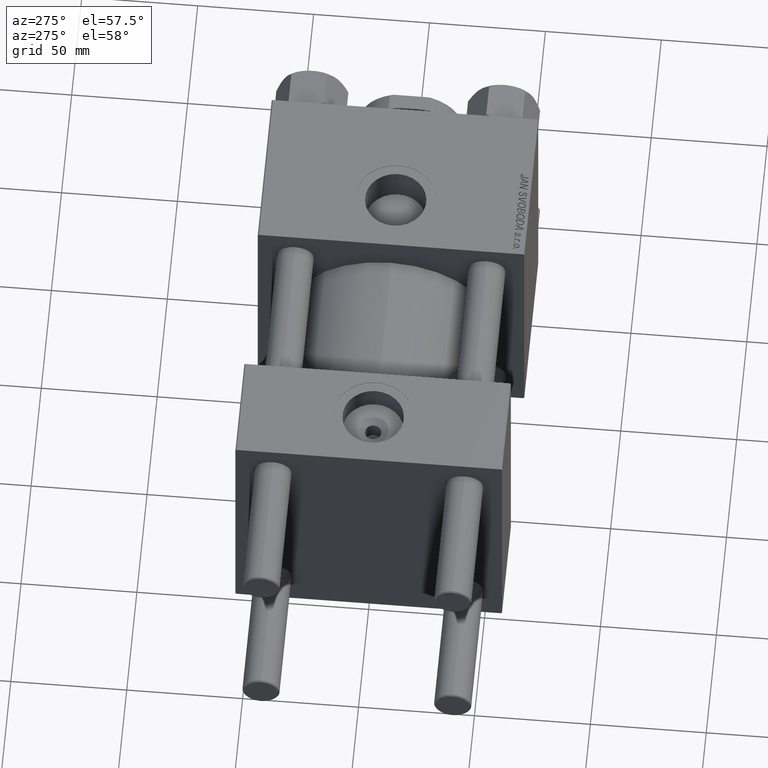
[diagram: clean part render]
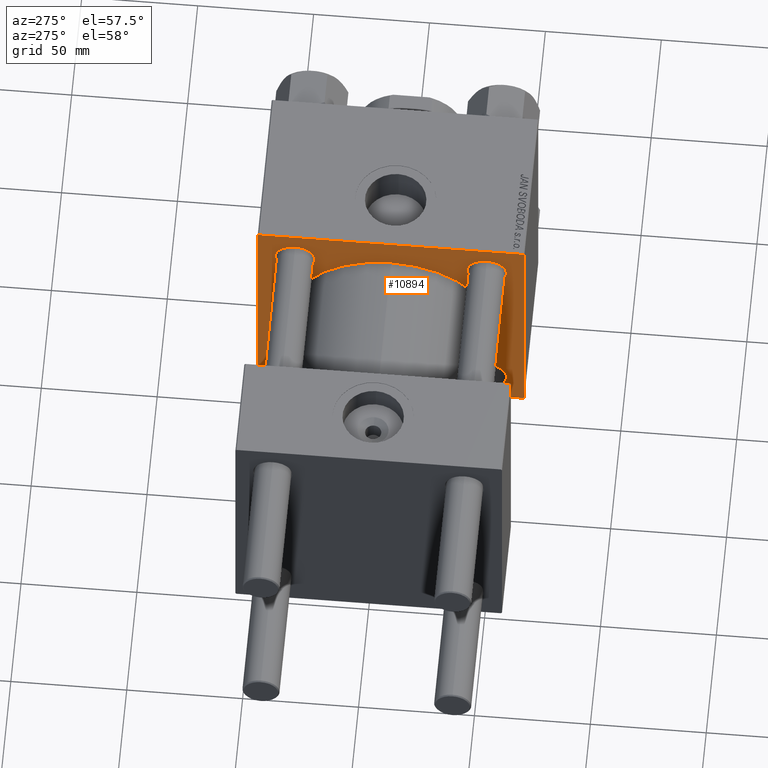
[diagram: same view with one face highlighted and labeled with its STEP entity id]
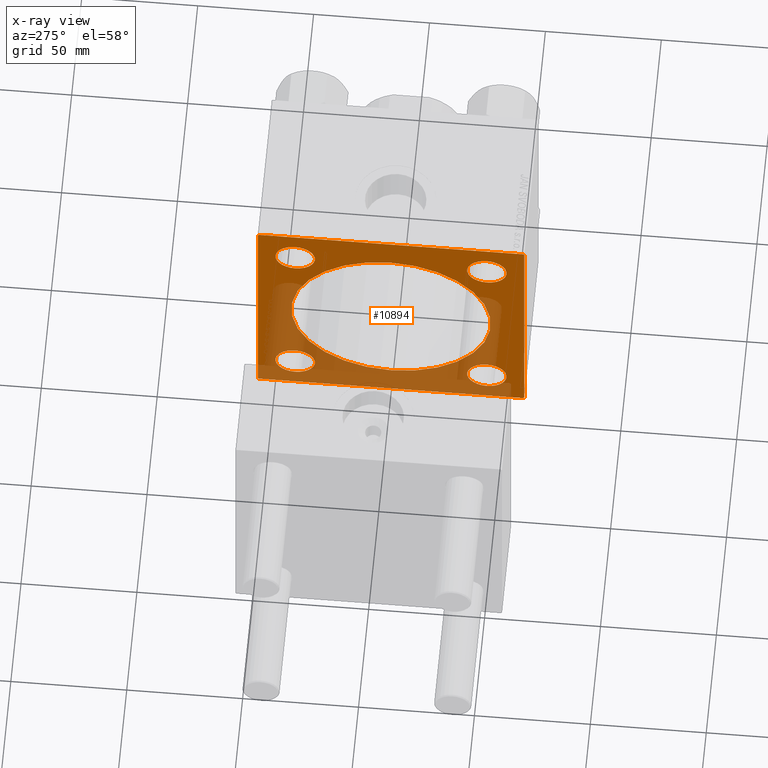
[diagram: x-ray of the same camera — body ghosted, the highlighted face saturated]
A machine part, auxiliary view. The second image highlights one B-rep face of the part: STEP entity #10894.
The next image is the same camera in x-ray: the body ghosted, the highlighted face saturated — about 43% of this face is hidden behind the body in this view.
In plain terms, the highlighted planar face has unit normal (-1, 0, 0).
Its self-contained STEP definition (entity closure, byte-faithful):
#220 = EDGE_LOOP ( 'NONE', ( #11552, #32388 ) ) ;
#613 = ORIENTED_EDGE ( 'NONE', *, *, #8282, .T. ) ;
#730 = CIRCLE ( 'NONE', #29184, 8.500000000000007105 ) ;
#1202 = VERTEX_POINT ( 'NONE', #38507 ) ;
#1532 = DIRECTION ( 'NONE',  ( 0.000000000000000000, 0.000000000000000000, 1.000000000000000000 ) ) ;
#2210 = DIRECTION ( 'NONE',  ( 0.000000000000000000, 0.000000000000000000, -1.000000000000000000 ) ) ;
#2318 = ORIENTED_EDGE ( 'NONE', *, *, #16825, .T. ) ;
#2394 = ORIENTED_EDGE ( 'NONE', *, *, #43555, .T. ) ;
#2690 = ORIENTED_EDGE ( 'NONE', *, *, #18058, .T. ) ;
#3242 = ORIENTED_EDGE ( 'NONE', *, *, #6230, .T. ) ;
#3484 = VERTEX_POINT ( 'NONE', #39026 ) ;
#3653 = CARTESIAN_POINT ( 'NONE',  ( 110.0000000000000000, 57.24999999999840838, 57.25000000000159162 ) ) ;
#4194 = ORIENTED_EDGE ( 'NONE', *, *, #22688, .T. ) ;
#4236 = CARTESIAN_POINT ( 'NONE',  ( 110.0000000000000000, -41.34999999999998721, -41.35000000000000853 ) ) ;
#4841 = DIRECTION ( 'NONE',  ( 1.000000000000000000, -0.000000000000000000, 0.000000000000000000 ) ) ;
#6230 = EDGE_CURVE ( 'NONE', #21878, #1202, #10455, .T. ) ;
#6247 = LINE ( 'NONE', #25345, #32640 ) ;
#6410 = DIRECTION ( 'NONE',  ( 1.000000000000000000, -0.000000000000000000, 0.000000000000000000 ) ) ;
#6421 = DIRECTION ( 'NONE',  ( 1.000000000000000000, 0.000000000000000000, 0.000000000000000000 ) ) ;
#6755 = CARTESIAN_POINT ( 'NONE',  ( 110.0000000000000000, 41.34999999999999432, 41.35000000000000142 ) ) ;
#7007 = FACE_BOUND ( 'NONE', #220, .T. ) ;
#7060 = VERTEX_POINT ( 'NONE', #18885 ) ;
#7730 = DIRECTION ( 'NONE',  ( 0.000000000000000000, 0.000000000000000000, 1.000000000000000000 ) ) ;
#7766 = ORIENTED_EDGE ( 'NONE', *, *, #22956, .T. ) ;
#8282 = EDGE_CURVE ( 'NONE', #12847, #33347, #31095, .T. ) ;
#8564 = CARTESIAN_POINT ( 'NONE',  ( 110.0000000000000000, 5.265981236333618470E-15, -43.00000000000000000 ) ) ;
#8634 = LINE ( 'NONE', #23163, #32303 ) ;
#9175 = CARTESIAN_POINT ( 'NONE',  ( 110.0000000000000000, 41.34999999999999432, -41.35000000000000142 ) ) ;
#9295 = VERTEX_POINT ( 'NONE', #47902 ) ;
#9562 = LINE ( 'NONE', #28179, #38556 ) ;
#9889 = AXIS2_PLACEMENT_3D ( 'NONE', #49800, #26114, #30446 ) ;
#10455 = LINE ( 'NONE', #46540, #17093 ) ;
#10525 = DIRECTION ( 'NONE',  ( 0.000000000000000000, 0.7071067811865672237, -0.7071067811865279218 ) ) ;
#10690 = AXIS2_PLACEMENT_3D ( 'NONE', #6755, #37824, #27373 ) ;
#10894 = ADVANCED_FACE ( 'NONE', ( #42146, #49294, #41902, #7007, #14420, #45466 ), #15171, .T. ) ;
#10922 = EDGE_CURVE ( 'NONE', #42789, #9295, #36732, .T. ) ;
#10971 = EDGE_LOOP ( 'NONE', ( #613, #23017, #42031, #3242, #47701, #7766, #2394, #49046 ) ) ;
#11051 = EDGE_CURVE ( 'NONE', #35577, #3484, #47315, .T. ) ;
#11067 = CARTESIAN_POINT ( 'NONE',  ( 110.0000000000000000, 56.99999999999997158, 57.50000000000000711 ) ) ;
#11416 = CARTESIAN_POINT ( 'NONE',  ( 110.0000000000000000, -41.34999999999998721, -49.85000000000002274 ) ) ;
#11552 = ORIENTED_EDGE ( 'NONE', *, *, #26983, .T. ) ;
#11854 = CARTESIAN_POINT ( 'NONE',  ( 110.0000000000000000, 0.000000000000000000, 0.000000000000000000 ) ) ;
#12847 = VERTEX_POINT ( 'NONE', #18142 ) ;
#13399 = DIRECTION ( 'NONE',  ( -0.000000000000000000, -0.7071067811865279218, -0.7071067811865672237 ) ) ;
#13405 = AXIS2_PLACEMENT_3D ( 'NONE', #11854, #46235, #50313 ) ;
#14420 = FACE_BOUND ( 'NONE', #34066, .T. ) ;
#14506 = DIRECTION ( 'NONE',  ( 0.000000000000000000, -0.7071067811865721087, 0.7071067811865230368 ) ) ;
#14570 = DIRECTION ( 'NONE',  ( 0.000000000000000000, 0.000000000000000000, 1.000000000000000000 ) ) ;
#15171 = PLANE ( 'NONE',  #9889 ) ;
#15582 = DIRECTION ( 'NONE',  ( 0.000000000000000000, -1.000000000000000000, -1.206764157201257291E-16 ) ) ;
#16804 = EDGE_LOOP ( 'NONE', ( #25559, #2318 ) ) ;
#16825 = EDGE_CURVE ( 'NONE', #31172, #20084, #19737, .T. ) ;
#16838 = DIRECTION ( 'NONE',  ( 1.000000000000000000, -0.000000000000000000, 0.000000000000000000 ) ) ;
#17093 = VECTOR ( 'NONE', #25745, 1000.000000000000000 ) ;
#17223 = CARTESIAN_POINT ( 'NONE',  ( 110.0000000000000000, 41.34999999999999432, -32.84999999999999432 ) ) ;
#17259 = DIRECTION ( 'NONE',  ( 1.000000000000000000, -0.000000000000000000, 0.000000000000000000 ) ) ;
#17722 = EDGE_CURVE ( 'NONE', #9295, #42789, #40099, .T. ) ;
#18058 = EDGE_CURVE ( 'NONE', #3484, #35577, #41708, .T. ) ;
#18142 = CARTESIAN_POINT ( 'NONE',  ( 110.0000000000000000, 57.00000000000000000, -57.49999999999996447 ) ) ;
#18474 = VECTOR ( 'NONE', #30616, 1000.000000000000000 ) ;
#18885 = CARTESIAN_POINT ( 'NONE',  ( 110.0000000000000000, -57.49999999999999289, -56.99999999999997868 ) ) ;
#18923 = VERTEX_POINT ( 'NONE', #49897 ) ;
#19117 = VECTOR ( 'NONE', #10525, 1000.000000000000000 ) ;
#19178 = CARTESIAN_POINT ( 'NONE',  ( 110.0000000000000000, -41.34999999999998721, -32.85000000000000142 ) ) ;
#19196 = AXIS2_PLACEMENT_3D ( 'NONE', #46132, #6410, #14570 ) ;
#19737 = CIRCLE ( 'NONE', #27067, 8.500000000000007105 ) ;
#20049 = DIRECTION ( 'NONE',  ( 0.000000000000000000, 0.000000000000000000, 1.000000000000000000 ) ) ;
#20084 = VERTEX_POINT ( 'NONE', #17223 ) ;
#20104 = EDGE_CURVE ( 'NONE', #18923, #12847, #9562, .T. ) ;
#21305 = LINE ( 'NONE', #36818, #25586 ) ;
#21878 = VERTEX_POINT ( 'NONE', #34070 ) ;
#22688 = EDGE_CURVE ( 'NONE', #49804, #26924, #33746, .T. ) ;
#22956 = EDGE_CURVE ( 'NONE', #30449, #39489, #26069, .T. ) ;
#23017 = ORIENTED_EDGE ( 'NONE', *, *, #49819, .T. ) ;
#23163 = CARTESIAN_POINT ( 'NONE',  ( 110.0000000000000000, -57.24999999999798916, -57.25000000000196820 ) ) ;
#23285 = CIRCLE ( 'NONE', #39517, 43.00000000000000000 ) ;
#24021 = ORIENTED_EDGE ( 'NONE', *, *, #26176, .T. ) ;
#24111 = CIRCLE ( 'NONE', #25740, 8.500000000000007105 ) ;
#25345 = CARTESIAN_POINT ( 'NONE',  ( 110.0000000000000000, -57.49999999999999289, 57.49999999999999289 ) ) ;
#25428 = EDGE_CURVE ( 'NONE', #20084, #31172, #28124, .T. ) ;
#25559 = ORIENTED_EDGE ( 'NONE', *, *, #25428, .T. ) ;
#25586 = VECTOR ( 'NONE', #2210, 1000.000000000000000 ) ;
#25740 = AXIS2_PLACEMENT_3D ( 'NONE', #4236, #35304, #20049 ) ;
#25745 = DIRECTION ( 'NONE',  ( -0.000000000000000000, 0.7071067811865328068, 0.7071067811865622277 ) ) ;
#25777 = CARTESIAN_POINT ( 'NONE',  ( 110.0000000000000000, 0.000000000000000000, 0.000000000000000000 ) ) ;
#25864 = ORIENTED_EDGE ( 'NONE', *, *, #17722, .T. ) ;
#26069 = LINE ( 'NONE', #3653, #19117 ) ;
#26114 = DIRECTION ( 'NONE',  ( -1.000000000000000000, 0.000000000000000000, -0.000000000000000000 ) ) ;
#26176 = EDGE_CURVE ( 'NONE', #26924, #49804, #23285, .T. ) ;
#26744 = CARTESIAN_POINT ( 'NONE',  ( 110.0000000000000000, 0.000000000000000000, 43.00000000000000000 ) ) ;
#26924 = VERTEX_POINT ( 'NONE', #8564 ) ;
#26983 = EDGE_CURVE ( 'NONE', #32801, #38388, #24111, .T. ) ;
#27067 = AXIS2_PLACEMENT_3D ( 'NONE', #9175, #16838, #40232 ) ;
#27091 = CARTESIAN_POINT ( 'NONE',  ( 110.0000000000000000, -41.34999999999998721, -41.35000000000000853 ) ) ;
#27184 = EDGE_LOOP ( 'NONE', ( #2690, #49541 ) ) ;
#27373 = DIRECTION ( 'NONE',  ( 0.000000000000000000, 0.000000000000000000, 1.000000000000000000 ) ) ;
#28124 = CIRCLE ( 'NONE', #19196, 8.500000000000007105 ) ;
#28128 = DIRECTION ( 'NONE',  ( 1.000000000000000000, -0.000000000000000000, 0.000000000000000000 ) ) ;
#28179 = CARTESIAN_POINT ( 'NONE',  ( 110.0000000000000000, 57.25000000000157030, -57.24999999999838707 ) ) ;
#29184 = AXIS2_PLACEMENT_3D ( 'NONE', #27091, #50023, #7730 ) ;
#29545 = EDGE_CURVE ( 'NONE', #38388, #32801, #730, .T. ) ;
#30446 = DIRECTION ( 'NONE',  ( -0.000000000000000000, 0.000000000000000000, 1.000000000000000000 ) ) ;
#30449 = VERTEX_POINT ( 'NONE', #11067 ) ;
#30616 = DIRECTION ( 'NONE',  ( 0.000000000000000000, -1.000000000000000000, -1.206764157201257291E-16 ) ) ;
#31095 = LINE ( 'NONE', #39227, #39058 ) ;
#31172 = VERTEX_POINT ( 'NONE', #36548 ) ;
#32276 = EDGE_CURVE ( 'NONE', #21878, #7060, #6247, .T. ) ;
#32303 = VECTOR ( 'NONE', #14506, 1000.000000000000000 ) ;
#32388 = ORIENTED_EDGE ( 'NONE', *, *, #29545, .T. ) ;
#32640 = VECTOR ( 'NONE', #49032, 1000.000000000000000 ) ;
#32801 = VERTEX_POINT ( 'NONE', #19178 ) ;
#33008 = CARTESIAN_POINT ( 'NONE',  ( 110.0000000000000000, 57.50000000000000000, 57.00000000000000711 ) ) ;
#33159 = DIRECTION ( 'NONE',  ( 0.000000000000000000, 0.000000000000000000, -1.000000000000000000 ) ) ;
#33347 = VERTEX_POINT ( 'NONE', #40629 ) ;
#33431 = CARTESIAN_POINT ( 'NONE',  ( 110.0000000000000000, 41.34999999999999432, 49.85000000000001563 ) ) ;
#33663 = ORIENTED_EDGE ( 'NONE', *, *, #10922, .T. ) ;
#33746 = CIRCLE ( 'NONE', #13405, 43.00000000000000000 ) ;
#34066 = EDGE_LOOP ( 'NONE', ( #4194, #24021 ) ) ;
#34070 = CARTESIAN_POINT ( 'NONE',  ( 110.0000000000000000, -57.49999999999999289, 56.99999999999996447 ) ) ;
#35004 = CARTESIAN_POINT ( 'NONE',  ( 110.0000000000000000, -41.34999999999998721, 41.35000000000000853 ) ) ;
#35304 = DIRECTION ( 'NONE',  ( 1.000000000000000000, -0.000000000000000000, 0.000000000000000000 ) ) ;
#35577 = VERTEX_POINT ( 'NONE', #50193 ) ;
#36548 = CARTESIAN_POINT ( 'NONE',  ( 110.0000000000000000, 41.34999999999999432, -49.85000000000001563 ) ) ;
#36732 = CIRCLE ( 'NONE', #10690, 8.500000000000007105 ) ;
#36818 = CARTESIAN_POINT ( 'NONE',  ( 110.0000000000000000, 57.50000000000000000, 57.50000000000000711 ) ) ;
#36826 = AXIS2_PLACEMENT_3D ( 'NONE', #44037, #4841, #1532 ) ;
#36837 = CARTESIAN_POINT ( 'NONE',  ( 110.0000000000000000, -41.34999999999998721, 41.35000000000000853 ) ) ;
#37824 = DIRECTION ( 'NONE',  ( 1.000000000000000000, -0.000000000000000000, 0.000000000000000000 ) ) ;
#38388 = VERTEX_POINT ( 'NONE', #11416 ) ;
#38507 = CARTESIAN_POINT ( 'NONE',  ( 110.0000000000000000, -56.99999999999998579, 57.49999999999999289 ) ) ;
#38556 = VECTOR ( 'NONE', #13399, 1000.000000000000000 ) ;
#39026 = CARTESIAN_POINT ( 'NONE',  ( 110.0000000000000000, -41.34999999999998721, 49.85000000000002274 ) ) ;
#39058 = VECTOR ( 'NONE', #15582, 1000.000000000000000 ) ;
#39227 = CARTESIAN_POINT ( 'NONE',  ( 110.0000000000000000, 57.50000000000000000, -57.49999999999996447 ) ) ;
#39489 = VERTEX_POINT ( 'NONE', #33008 ) ;
#39517 = AXIS2_PLACEMENT_3D ( 'NONE', #25777, #6421, #33159 ) ;
#40099 = CIRCLE ( 'NONE', #36826, 8.500000000000007105 ) ;
#40232 = DIRECTION ( 'NONE',  ( 0.000000000000000000, 0.000000000000000000, 1.000000000000000000 ) ) ;
#40629 = CARTESIAN_POINT ( 'NONE',  ( 110.0000000000000000, -56.99999999999995737, -57.49999999999997868 ) ) ;
#41708 = CIRCLE ( 'NONE', #48225, 8.500000000000007105 ) ;
#41902 = FACE_BOUND ( 'NONE', #16804, .T. ) ;
#42031 = ORIENTED_EDGE ( 'NONE', *, *, #32276, .F. ) ;
#42146 = FACE_BOUND ( 'NONE', #27184, .T. ) ;
#42789 = VERTEX_POINT ( 'NONE', #33431 ) ;
#43555 = EDGE_CURVE ( 'NONE', #39489, #18923, #21305, .T. ) ;
#43646 = DIRECTION ( 'NONE',  ( 0.000000000000000000, 0.000000000000000000, 1.000000000000000000 ) ) ;
#44037 = CARTESIAN_POINT ( 'NONE',  ( 110.0000000000000000, 41.34999999999999432, 41.35000000000000142 ) ) ;
#45466 = FACE_OUTER_BOUND ( 'NONE', #10971, .T. ) ;
#45891 = CARTESIAN_POINT ( 'NONE',  ( 110.0000000000000000, 57.50000000000000000, 57.50000000000000711 ) ) ;
#46132 = CARTESIAN_POINT ( 'NONE',  ( 110.0000000000000000, 41.34999999999999432, -41.35000000000000142 ) ) ;
#46235 = DIRECTION ( 'NONE',  ( 1.000000000000000000, 0.000000000000000000, 0.000000000000000000 ) ) ;
#46540 = CARTESIAN_POINT ( 'NONE',  ( 110.0000000000000000, -57.25000000000117240, 57.24999999999879208 ) ) ;
#47315 = CIRCLE ( 'NONE', #49763, 8.500000000000007105 ) ;
#47701 = ORIENTED_EDGE ( 'NONE', *, *, #48717, .F. ) ;
#47902 = CARTESIAN_POINT ( 'NONE',  ( 110.0000000000000000, 41.34999999999999432, 32.84999999999999432 ) ) ;
#48009 = EDGE_LOOP ( 'NONE', ( #33663, #25864 ) ) ;
#48225 = AXIS2_PLACEMENT_3D ( 'NONE', #36837, #17259, #48320 ) ;
#48320 = DIRECTION ( 'NONE',  ( 0.000000000000000000, 0.000000000000000000, 1.000000000000000000 ) ) ;
#48717 = EDGE_CURVE ( 'NONE', #30449, #1202, #49972, .T. ) ;
#49032 = DIRECTION ( 'NONE',  ( 0.000000000000000000, 0.000000000000000000, -1.000000000000000000 ) ) ;
#49046 = ORIENTED_EDGE ( 'NONE', *, *, #20104, .T. ) ;
#49294 = FACE_BOUND ( 'NONE', #48009, .T. ) ;
#49541 = ORIENTED_EDGE ( 'NONE', *, *, #11051, .T. ) ;
#49763 = AXIS2_PLACEMENT_3D ( 'NONE', #35004, #28128, #43646 ) ;
#49800 = CARTESIAN_POINT ( 'NONE',  ( 110.0000000000000000, 0.000000000000000000, 0.000000000000000000 ) ) ;
#49804 = VERTEX_POINT ( 'NONE', #26744 ) ;
#49819 = EDGE_CURVE ( 'NONE', #33347, #7060, #8634, .T. ) ;
#49897 = CARTESIAN_POINT ( 'NONE',  ( 110.0000000000000000, 57.50000000000000000, -56.99999999999994316 ) ) ;
#49972 = LINE ( 'NONE', #45891, #18474 ) ;
#50023 = DIRECTION ( 'NONE',  ( 1.000000000000000000, -0.000000000000000000, 0.000000000000000000 ) ) ;
#50193 = CARTESIAN_POINT ( 'NONE',  ( 110.0000000000000000, -41.34999999999998721, 32.85000000000000142 ) ) ;
#50313 = DIRECTION ( 'NONE',  ( 0.000000000000000000, 0.000000000000000000, -1.000000000000000000 ) ) ;